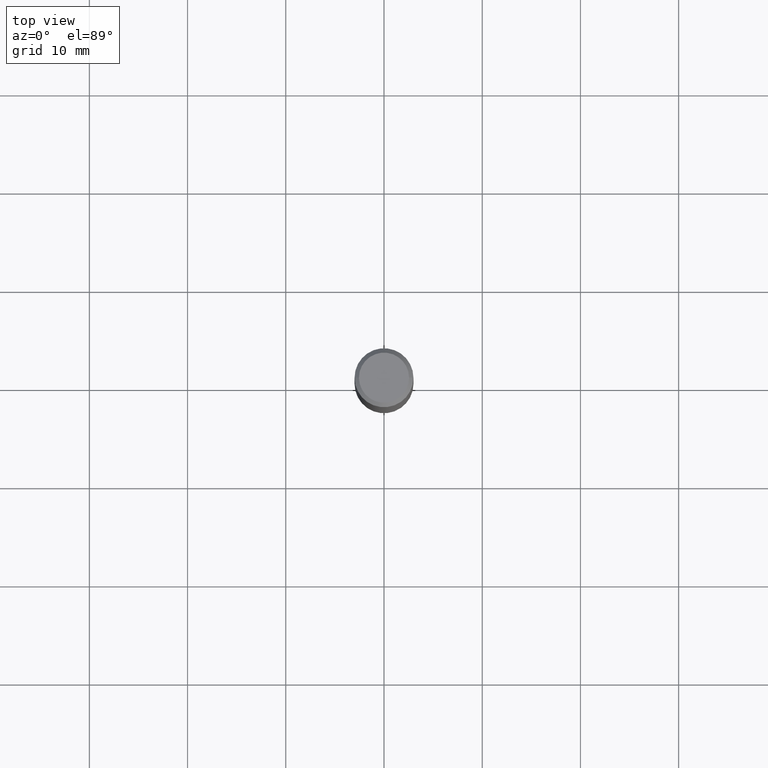
[diagram: clean part render]
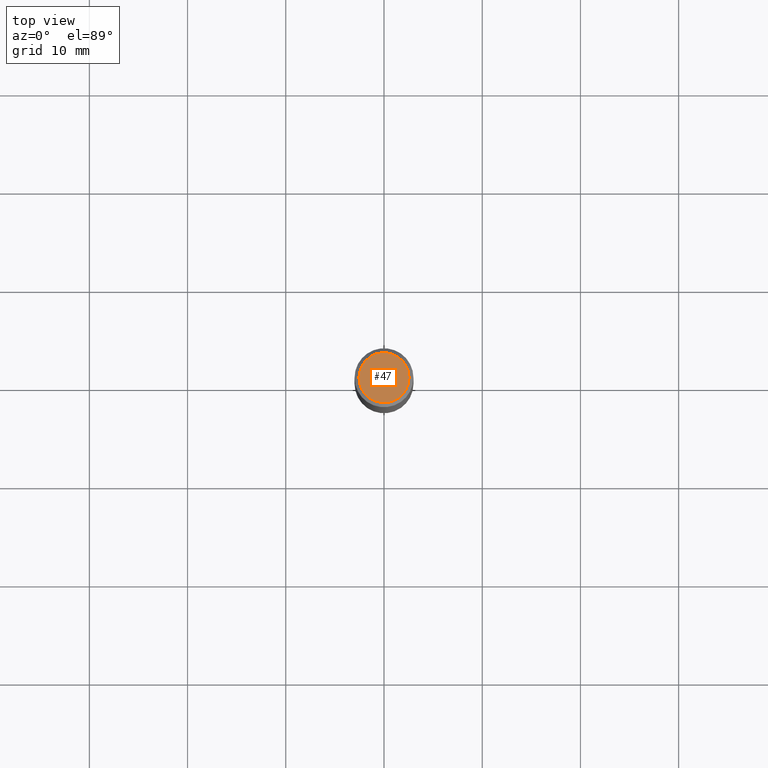
[diagram: same view with one face highlighted and labeled with its STEP entity id]
A machine part, top view. The second image highlights one B-rep face of the part: STEP entity #47.
In plain terms, the highlighted planar face has unit normal (0, -0, -1).
Its self-contained STEP definition (entity closure, byte-faithful):
#37 = DIRECTION ( 'NONE',  ( 1.000000000000000000, -6.982962677686266711E-15, 4.875668750515085695E-29 ) ) ;
#39 = EDGE_CURVE ( 'NONE', #377, #311, #160, .T. ) ;
#47 = ADVANCED_FACE ( 'NONE', ( #339 ), #149, .F. ) ;
#93 = AXIS2_PLACEMENT_3D ( 'NONE', #451, #116, #170 ) ;
#95 = EDGE_CURVE ( 'NONE', #311, #377, #370, .T. ) ;
#109 = CARTESIAN_POINT ( 'NONE',  ( -0.1003850000000000159, 7.319105043583384717E-16, -2.868857591683090262E-17 ) ) ;
#116 = DIRECTION ( 'NONE',  ( 2.438088387897960049E-29, -3.491481338843145188E-15, -1.000000000000000000 ) ) ;
#119 = ORIENTED_EDGE ( 'NONE', *, *, #95, .T. ) ;
#121 = ORIENTED_EDGE ( 'NONE', *, *, #39, .T. ) ;
#149 = PLANE ( 'NONE',  #93 ) ;
#160 = CIRCLE ( 'NONE', #356, 0.1003850000000000159 ) ;
#170 = DIRECTION ( 'NONE',  ( -1.000000000000000000, 6.982962677686265922E-15, -4.876176775795935793E-29 ) ) ;
#179 = DIRECTION ( 'NONE',  ( -2.445468806185136597E-29, 3.491481338843145583E-15, 1.000000000000000000 ) ) ;
#222 = CARTESIAN_POINT ( 'NONE',  ( 0.1003850000000000159, -7.803837484803599345E-16, -2.868857591682071522E-17 ) ) ;
#294 = CARTESIAN_POINT ( 'NONE',  ( 7.015701749847187307E-46, -1.001656274515824970E-31, -2.868857591682589212E-17 ) ) ;
#311 = VERTEX_POINT ( 'NONE', #222 ) ;
#339 = FACE_OUTER_BOUND ( 'NONE', #397, .T. ) ;
#348 = AXIS2_PLACEMENT_3D ( 'NONE', #294, #179, #436 ) ;
#356 = AXIS2_PLACEMENT_3D ( 'NONE', #459, #405, #37 ) ;
#370 = CIRCLE ( 'NONE', #348, 0.1003850000000000159 ) ;
#377 = VERTEX_POINT ( 'NONE', #109 ) ;
#397 = EDGE_LOOP ( 'NONE', ( #121, #119 ) ) ;
#405 = DIRECTION ( 'NONE',  ( -2.445468806185136597E-29, 3.491481338843145583E-15, 1.000000000000000000 ) ) ;
#436 = DIRECTION ( 'NONE',  ( 1.000000000000000000, -6.982962677686266711E-15, 4.875668750515085695E-29 ) ) ;
#451 = CARTESIAN_POINT ( 'NONE',  ( 3.507850874923593654E-46, -5.008281372579124849E-32, -1.434428795841294606E-17 ) ) ;
#459 = CARTESIAN_POINT ( 'NONE',  ( 7.015701749847187307E-46, -1.001656274515824970E-31, -2.868857591682589212E-17 ) ) ;